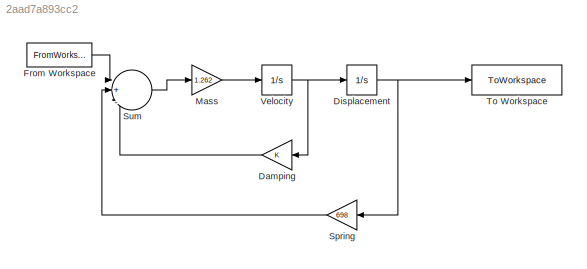
MODEL slx_2aad7a893cc2
KIND model
CONFIG AbsTol = auto
CONFIG EnableMultiTasking = off
CONFIG FixedStep = auto
CONFIG MaxStep = auto
CONFIG MinStep = auto
CONFIG RelTol = 1e-3
CONFIG SampleTimeConstraint = Unconstrained
CONFIG SolverName = ode45
CONFIG StartTime = 0.0
CONFIG StopTime = 5
BLOCK [Gain] Damping
BLOCK [Integrator] Displacement
BLOCK [FromWorkspace] From Workspace
  VariableName = forceData
BLOCK [Gain] Mass
  Gain = 1.262
BLOCK [Gain] Spring
  Gain = 698
BLOCK [Sum] Sum
  Inputs = |+|-|-|
BLOCK [ToWorkspace] To Workspace
  FixptAsFi = on
  MaxDataPoints = inf
  SampleTime = -1
  SaveFormat = Timeseries
  VariableName = displacement
BLOCK [Integrator] Velocity
LINE Damping:1 -> Sum:3
NET Displacement:1 -> Spring:1, To Workspace:1
LINE From Workspace:1 -> Sum:1
LINE Mass:1 -> Velocity:1
LINE Spring:1 -> Sum:2
LINE Sum:1 -> Mass:1
NET Velocity:1 -> Damping:1, Displacement:1
note: NET lines group one-source signal fan-out (src -> all destinations, sorted); 1:1 wires keep LINE
